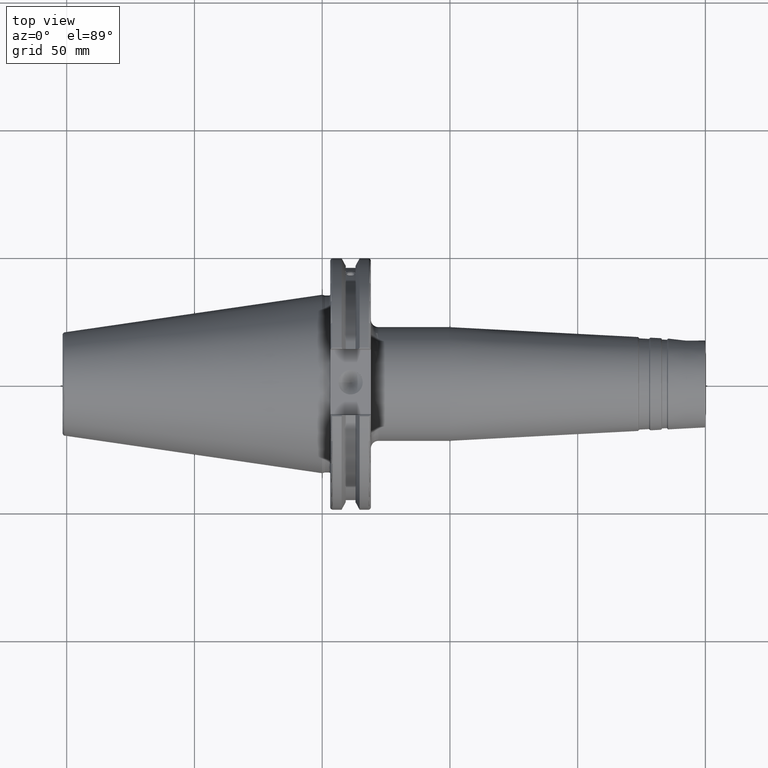
[diagram: clean part render]
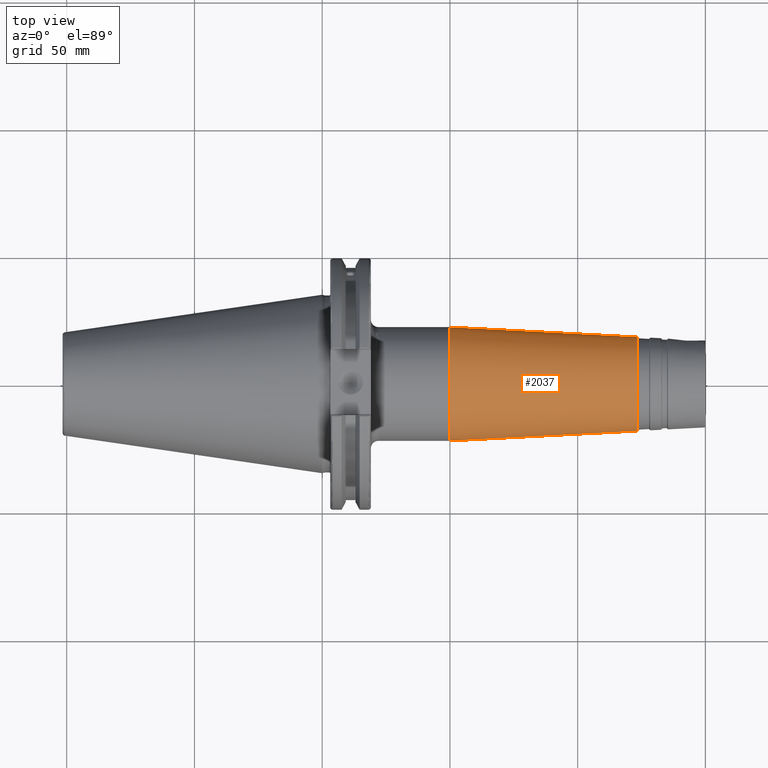
[diagram: same view with one face highlighted and labeled with its STEP entity id]
A machine part, top view. The second image highlights one B-rep face of the part: STEP entity #2037.
In plain terms, the highlighted conical surface has half-angle 3 deg.
Its self-contained STEP definition (entity closure, byte-faithful):
#96=CONICAL_SURFACE('',#2242,20.3127744457545,0.0523598775598298);
#192=FACE_OUTER_BOUND('',#300,.T.);
#300=EDGE_LOOP('',(#1524,#1525,#1526,#1527,#1528,#1529,#1530));
#418=LINE('',#3399,#520);
#520=VECTOR('',#2650,20.3127744457545);
#612=CIRCLE('',#2155,22.25);
#613=CIRCLE('',#2156,22.25);
#677=CIRCLE('',#2239,18.387635362879);
#678=CIRCLE('',#2240,18.387635362879);
#679=CIRCLE('',#2241,18.387635362879);
#786=VERTEX_POINT('',#3223);
#787=VERTEX_POINT('',#3224);
#852=VERTEX_POINT('',#3391);
#853=VERTEX_POINT('',#3393);
#854=VERTEX_POINT('',#3395);
#1026=EDGE_CURVE('',#786,#787,#612,.T.);
#1027=EDGE_CURVE('',#787,#786,#613,.T.);
#1110=EDGE_CURVE('',#852,#853,#677,.T.);
#1111=EDGE_CURVE('',#853,#854,#678,.T.);
#1112=EDGE_CURVE('',#854,#852,#679,.T.);
#1113=EDGE_CURVE('',#853,#787,#418,.T.);
#1524=ORIENTED_EDGE('',*,*,#1112,.F.);
#1525=ORIENTED_EDGE('',*,*,#1111,.F.);
#1526=ORIENTED_EDGE('',*,*,#1113,.T.);
#1527=ORIENTED_EDGE('',*,*,#1027,.T.);
#1528=ORIENTED_EDGE('',*,*,#1026,.T.);
#1529=ORIENTED_EDGE('',*,*,#1113,.F.);
#1530=ORIENTED_EDGE('',*,*,#1110,.F.);
#2037=ADVANCED_FACE('',(#192),#96,.T.);
#2155=AXIS2_PLACEMENT_3D('',#3225,#2455,#2456);
#2156=AXIS2_PLACEMENT_3D('',#3226,#2457,#2458);
#2239=AXIS2_PLACEMENT_3D('',#3394,#2642,#2643);
#2240=AXIS2_PLACEMENT_3D('',#3396,#2644,#2645);
#2241=AXIS2_PLACEMENT_3D('',#3397,#2646,#2647);
#2242=AXIS2_PLACEMENT_3D('',#3398,#2648,#2649);
#2455=DIRECTION('center_axis',(1.,0.,0.));
#2456=DIRECTION('ref_axis',(0.,0.,-1.));
#2457=DIRECTION('center_axis',(1.,0.,0.));
#2458=DIRECTION('ref_axis',(0.,0.,-1.));
#2642=DIRECTION('center_axis',(1.,0.,0.));
#2643=DIRECTION('ref_axis',(0.,-1.,3.06161699786838E-17));
#2644=DIRECTION('center_axis',(1.,0.,0.));
#2645=DIRECTION('ref_axis',(0.,-1.,3.06161699786838E-17));
#2646=DIRECTION('center_axis',(1.,0.,0.));
#2647=DIRECTION('ref_axis',(0.,-1.,3.06161699786838E-17));
#2648=DIRECTION('center_axis',(-1.,0.,0.));
#2649=DIRECTION('ref_axis',(0.,1.,0.));
#2650=DIRECTION('',(-0.998629534754574,-0.0523359562429438,-6.4093061293237E-18));
#3223=CARTESIAN_POINT('',(49.8240323894269,22.25,0.));
#3224=CARTESIAN_POINT('',(49.8240323894269,-22.25,-2.72483912810286E-15));
#3225=CARTESIAN_POINT('Origin',(49.8240323894269,0.,0.));
#3226=CARTESIAN_POINT('Origin',(49.8240323894269,0.,0.));
#3391=CARTESIAN_POINT('',(123.522339968181,-2.25183587910384E-15,18.387635362879));
#3393=CARTESIAN_POINT('',(123.522339968181,-18.387635362879,-2.25183587910384E-15));
#3394=CARTESIAN_POINT('Origin',(123.522339968181,0.,-2.8147948488798E-15));
#3395=CARTESIAN_POINT('',(123.522339968181,18.387635362879,-1.12591793955192E-15));
#3396=CARTESIAN_POINT('Origin',(123.522339968181,0.,-2.8147948488798E-15));
#3397=CARTESIAN_POINT('Origin',(123.522339968181,0.,-2.8147948488798E-15));
#3398=CARTESIAN_POINT('Origin',(86.7884979849462,0.,0.));
#3399=CARTESIAN_POINT('',(86.7884979849462,-20.3127744457545,-2.48759742067954E-15));